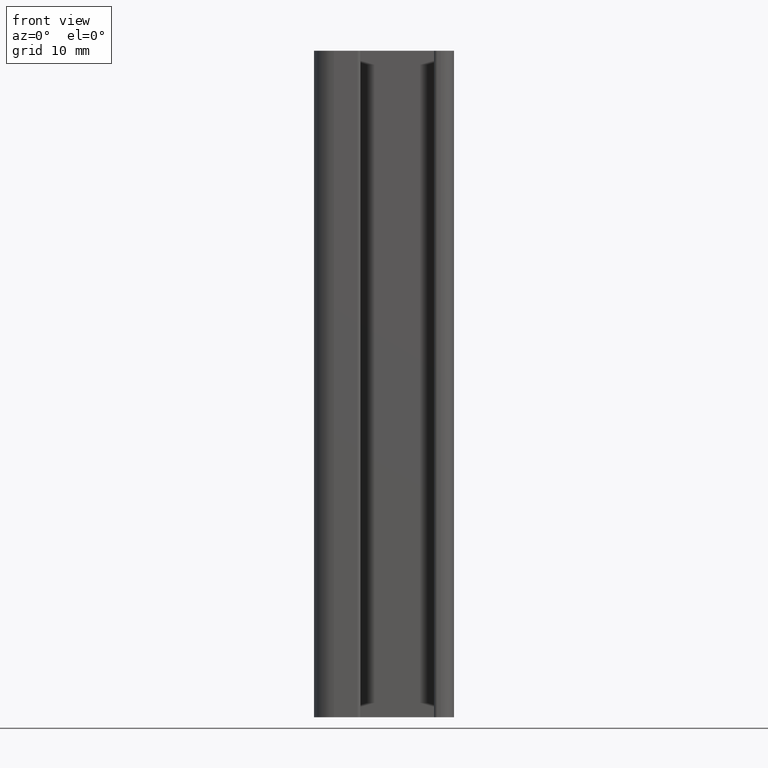
[diagram: clean part render]
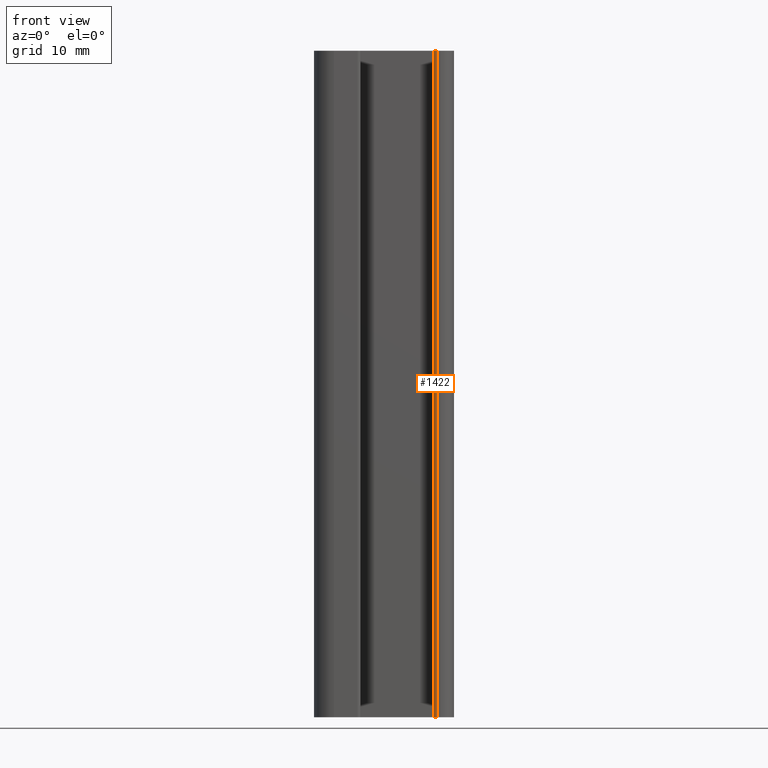
[diagram: same view with one face highlighted and labeled with its STEP entity id]
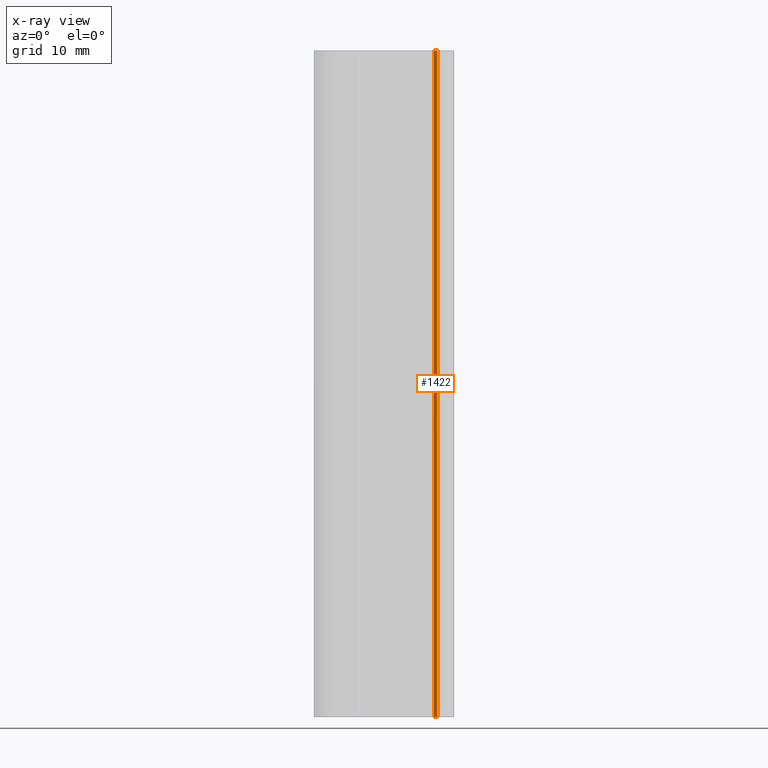
[diagram: x-ray of the same camera — body ghosted, the highlighted face saturated]
A machine part, front view. The second image highlights one B-rep face of the part: STEP entity #1422.
The next image is the same camera in x-ray: the body ghosted, the highlighted face saturated — about 0% of this face is hidden behind the body in this view.
In plain terms, the highlighted cylindrical surface (edge-blend (fillet) strip) has radius 0.5 mm, axis along (0, 0, 1).
Its self-contained STEP definition (entity closure, byte-faithful):
#110=FACE_OUTER_BOUND('',#182,.T.);
#182=EDGE_LOOP('',(#1113,#1114,#1115,#1116));
#323=LINE('',#2254,#485);
#324=LINE('',#2257,#486);
#485=VECTOR('',#1827,100.);
#486=VECTOR('',#1830,100.);
#559=CIRCLE('',#1521,0.499999999999872);
#560=CIRCLE('',#1522,0.499999999999872);
#675=VERTEX_POINT('',#2250);
#676=VERTEX_POINT('',#2251);
#677=VERTEX_POINT('',#2253);
#678=VERTEX_POINT('',#2255);
#859=EDGE_CURVE('',#675,#676,#559,.T.);
#860=EDGE_CURVE('',#677,#675,#323,.T.);
#861=EDGE_CURVE('',#678,#677,#560,.T.);
#862=EDGE_CURVE('',#676,#678,#324,.T.);
#1113=ORIENTED_EDGE('',*,*,#859,.F.);
#1114=ORIENTED_EDGE('',*,*,#860,.F.);
#1115=ORIENTED_EDGE('',*,*,#861,.F.);
#1116=ORIENTED_EDGE('',*,*,#862,.F.);
#1365=CYLINDRICAL_SURFACE('',#1520,0.499999999999872);
#1422=ADVANCED_FACE('',(#110),#1365,.T.);
#1520=AXIS2_PLACEMENT_3D('',#2249,#1823,#1824);
#1521=AXIS2_PLACEMENT_3D('',#2252,#1825,#1826);
#1522=AXIS2_PLACEMENT_3D('',#2256,#1828,#1829);
#1823=DIRECTION('center_axis',(0.,0.,1.));
#1824=DIRECTION('ref_axis',(1.,5.32907051820158E-14,0.));
#1825=DIRECTION('center_axis',(0.,0.,1.));
#1826=DIRECTION('ref_axis',(1.,5.32907051820158E-14,0.));
#1827=DIRECTION('',(0.,0.,1.));
#1828=DIRECTION('center_axis',(0.,0.,-1.));
#1829=DIRECTION('ref_axis',(1.,5.32907051820158E-14,0.));
#1830=DIRECTION('',(0.,0.,-1.));
#2249=CARTESIAN_POINT('Origin',(3.49999999999953,-19.5000000000004,0.));
#2250=CARTESIAN_POINT('',(2.9999999999996,-19.5000000000004,100.));
#2251=CARTESIAN_POINT('',(3.49999999999954,-20.0000000000003,100.));
#2252=CARTESIAN_POINT('Origin',(3.49999999999953,-19.5000000000004,100.));
#2253=CARTESIAN_POINT('',(2.9999999999996,-19.5000000000004,0.));
#2254=CARTESIAN_POINT('',(2.9999999999996,-19.5000000000004,0.));
#2255=CARTESIAN_POINT('',(3.49999999999954,-20.0000000000003,0.));
#2256=CARTESIAN_POINT('Origin',(3.49999999999953,-19.5000000000004,0.));
#2257=CARTESIAN_POINT('',(3.49999999999952,-19.9999999999998,0.));